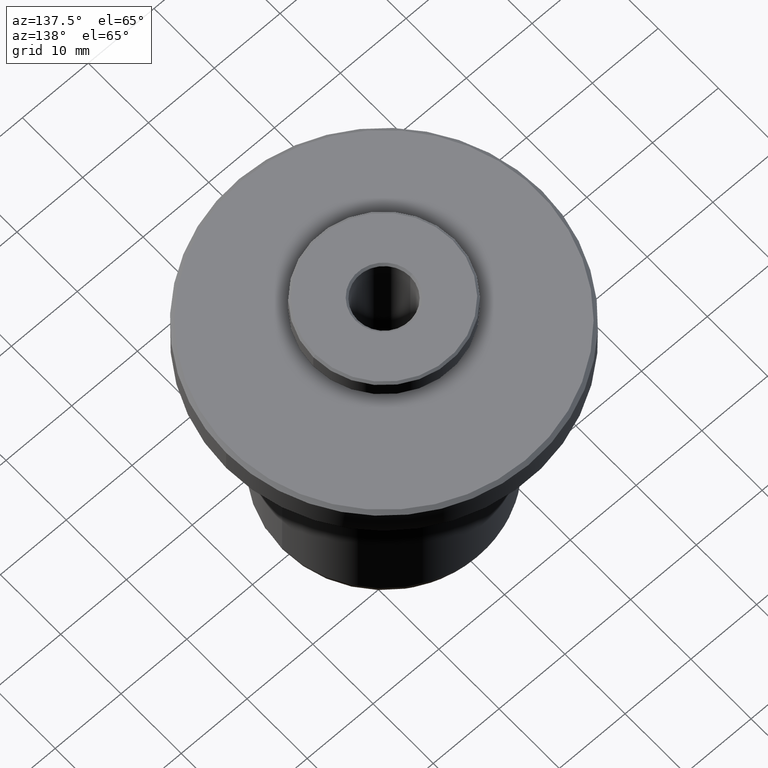
[diagram: clean part render]
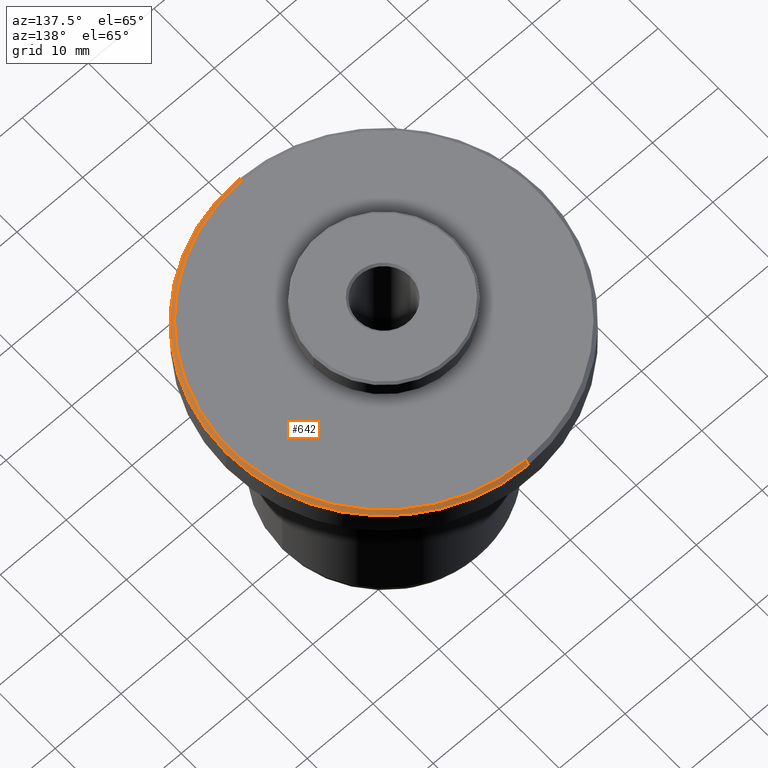
[diagram: same view with one face highlighted and labeled with its STEP entity id]
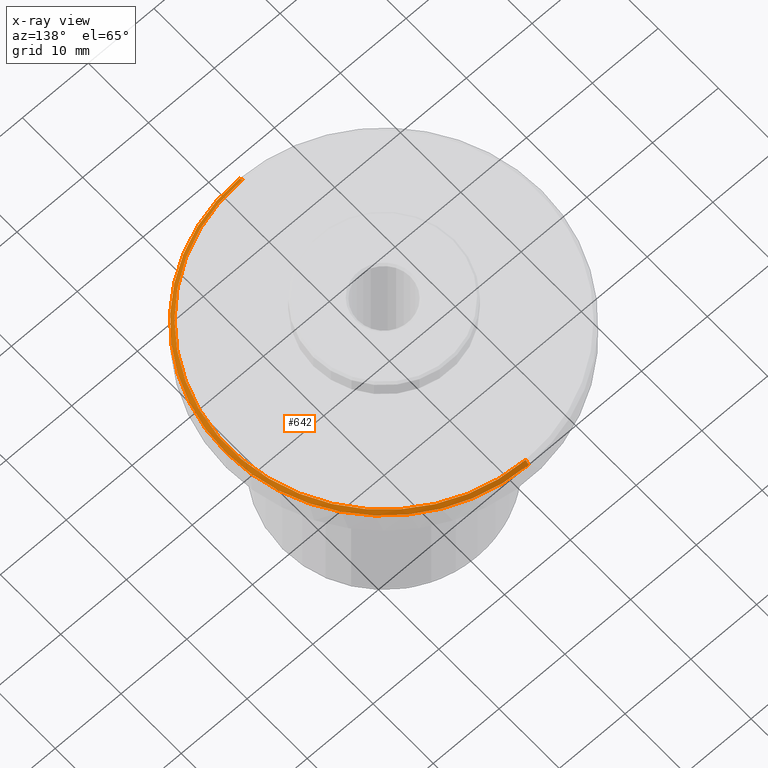
[diagram: x-ray of the same camera — body ghosted, the highlighted face saturated]
A machine part, auxiliary view. The second image highlights one B-rep face of the part: STEP entity #642.
The next image is the same camera in x-ray: the body ghosted, the highlighted face saturated — about 0% of this face is hidden behind the body in this view.
In plain terms, the highlighted conical surface has half-angle 45 deg.
Its self-contained STEP definition (entity closure, byte-faithful):
#57 = LINE ( 'NONE', #1360, #1577 ) ;
#65 = VERTEX_POINT ( 'NONE', #1446 ) ;
#69 = CARTESIAN_POINT ( 'NONE',  ( 24.00000000000000000, 2.939152317953647900E-015, 11.93848561500000100 ) ) ;
#104 = DIRECTION ( 'NONE',  ( 0.0000000000000000000, 1.000000000000000000, 0.0000000000000000000 ) ) ;
#160 = DIRECTION ( 'NONE',  ( -0.0000000000000000000, -0.0000000000000000000, 1.000000000000000000 ) ) ;
#208 = ORIENTED_EDGE ( 'NONE', *, *, #575, .F. ) ;
#247 = FACE_OUTER_BOUND ( 'NONE', #1820, .T. ) ;
#280 = AXIS2_PLACEMENT_3D ( 'NONE', #411, #561, #1579 ) ;
#358 = ORIENTED_EDGE ( 'NONE', *, *, #888, .T. ) ;
#411 = CARTESIAN_POINT ( 'NONE',  ( 0.0000000000000000000, 0.0000000000000000000, 11.93848561500000100 ) ) ;
#532 = CIRCLE ( 'NONE', #280, 24.00000000000000000 ) ;
#557 = AXIS2_PLACEMENT_3D ( 'NONE', #572, #1397, #1587 ) ;
#561 = DIRECTION ( 'NONE',  ( -0.0000000000000000000, -0.0000000000000000000, 1.000000000000000000 ) ) ;
#572 = CARTESIAN_POINT ( 'NONE',  ( 0.0000000000000000000, 1.792753937581369100E-030, 12.43848561500005100 ) ) ;
#575 = EDGE_CURVE ( 'NONE', #835, #65, #690, .T. ) ;
#642 = ADVANCED_FACE ( 'NONE', ( #247 ), #1335, .T. ) ;
#690 = CIRCLE ( 'NONE', #557, 23.49999999999995000 ) ;
#725 = CARTESIAN_POINT ( 'NONE',  ( 0.0000000000000000000, 24.00000000000000000, 11.93848561500000100 ) ) ;
#752 = CARTESIAN_POINT ( 'NONE',  ( 0.0000000000000000000, 0.0000000000000000000, 11.93848561500000100 ) ) ;
#794 = VERTEX_POINT ( 'NONE', #725 ) ;
#816 = ORIENTED_EDGE ( 'NONE', *, *, #1403, .F. ) ;
#823 = CARTESIAN_POINT ( 'NONE',  ( 2.908536147974961000E-015, -23.49999999999995000, 12.43848561500005100 ) ) ;
#835 = VERTEX_POINT ( 'NONE', #823 ) ;
#888 = EDGE_CURVE ( 'NONE', #835, #1103, #1677, .T. ) ;
#899 = EDGE_CURVE ( 'NONE', #1487, #794, #1061, .T. ) ;
#977 = DIRECTION ( 'NONE',  ( 8.659560562354931600E-017, -0.7071067811865474600, -0.7071067811865475700 ) ) ;
#1009 = EDGE_CURVE ( 'NONE', #1103, #1487, #532, .T. ) ;
#1056 = AXIS2_PLACEMENT_3D ( 'NONE', #1892, #1727, #104 ) ;
#1061 = CIRCLE ( 'NONE', #1596, 24.00000000000000000 ) ;
#1103 = VERTEX_POINT ( 'NONE', #1460 ) ;
#1134 = ORIENTED_EDGE ( 'NONE', *, *, #1009, .T. ) ;
#1220 = DIRECTION ( 'NONE',  ( 0.0000000000000000000, 0.7071067811865474600, -0.7071067811865475700 ) ) ;
#1335 = CONICAL_SURFACE ( 'NONE', #1056, 23.50000000000000000, 0.7853981633974482800 ) ;
#1360 = CARTESIAN_POINT ( 'NONE',  ( 0.0000000000000000000, 23.50000000000000000, 12.43848561500000100 ) ) ;
#1397 = DIRECTION ( 'NONE',  ( -0.0000000000000000000, 3.690901012716610800E-017, 1.000000000000000000 ) ) ;
#1403 = EDGE_CURVE ( 'NONE', #65, #794, #57, .T. ) ;
#1410 = CARTESIAN_POINT ( 'NONE',  ( 2.877919977996280300E-015, -23.50000000000000000, 12.43848561500000100 ) ) ;
#1444 = VECTOR ( 'NONE', #977, 1000.000000000000000 ) ;
#1446 = CARTESIAN_POINT ( 'NONE',  ( 0.0000000000000000000, 23.49999999999995000, 12.43848561500005100 ) ) ;
#1460 = CARTESIAN_POINT ( 'NONE',  ( 2.939152317953647900E-015, -24.00000000000000000, 11.93848561500000100 ) ) ;
#1487 = VERTEX_POINT ( 'NONE', #69 ) ;
#1577 = VECTOR ( 'NONE', #1220, 1000.000000000000000 ) ;
#1579 = DIRECTION ( 'NONE',  ( -1.000000000000000000, 0.0000000000000000000, 0.0000000000000000000 ) ) ;
#1587 = DIRECTION ( 'NONE',  ( 0.0000000000000000000, 1.000000000000000000, 0.0000000000000000000 ) ) ;
#1596 = AXIS2_PLACEMENT_3D ( 'NONE', #752, #160, #1720 ) ;
#1677 = LINE ( 'NONE', #1410, #1444 ) ;
#1702 = ORIENTED_EDGE ( 'NONE', *, *, #899, .T. ) ;
#1720 = DIRECTION ( 'NONE',  ( -1.000000000000000000, 0.0000000000000000000, 0.0000000000000000000 ) ) ;
#1727 = DIRECTION ( 'NONE',  ( 0.0000000000000000000, -3.690901012716610800E-017, -1.000000000000000000 ) ) ;
#1820 = EDGE_LOOP ( 'NONE', ( #208, #358, #1134, #1702, #816 ) ) ;
#1892 = CARTESIAN_POINT ( 'NONE',  ( 0.0000000000000000000, 0.0000000000000000000, 12.43848561500000100 ) ) ;